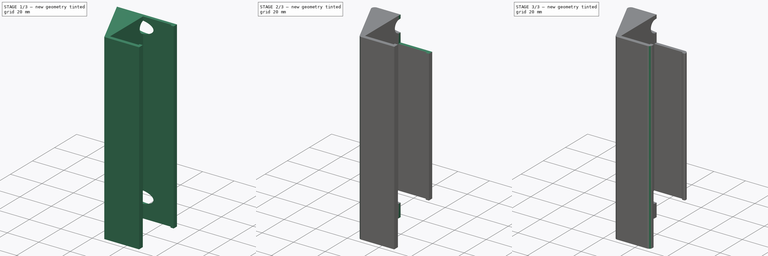
[diagram: build sequence overview — one tinted view per stage of 3, left to right]
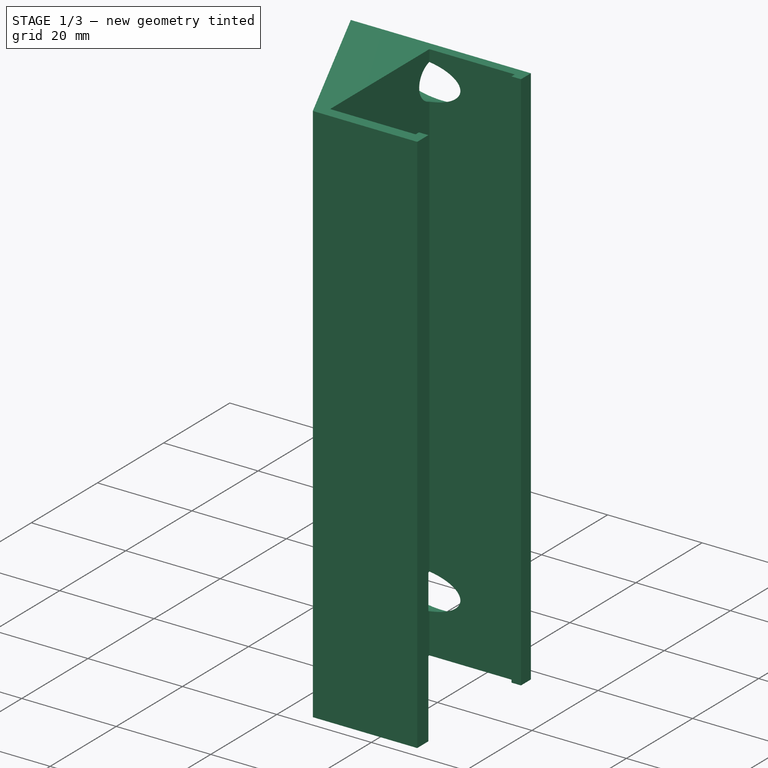
[diagram: stage 1 of 3 — iso view after this stage's code; geometry added in this stage tinted green]
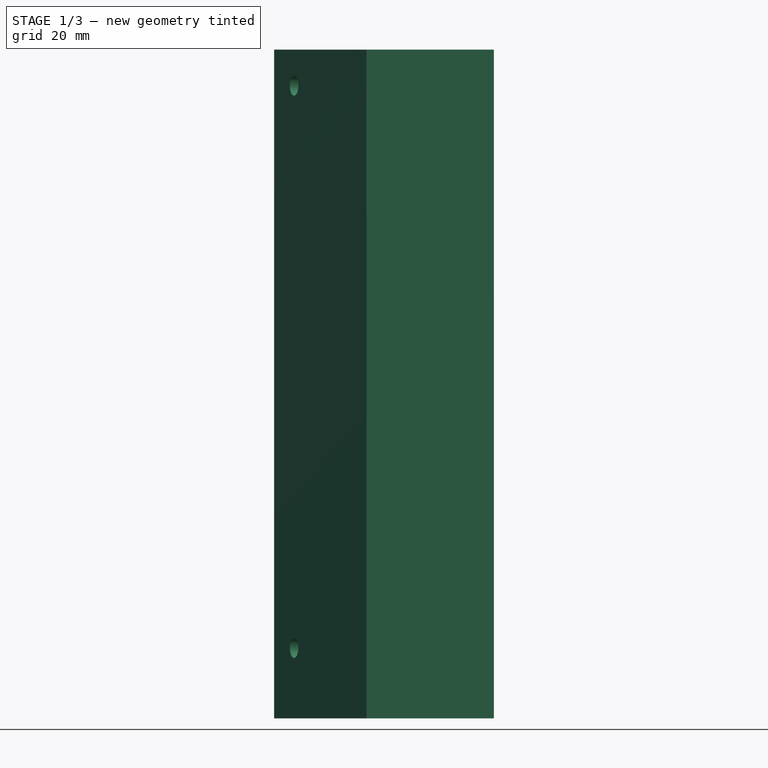
[diagram: stage 1 of 3 — front view after this stage's code; geometry added in this stage tinted green]
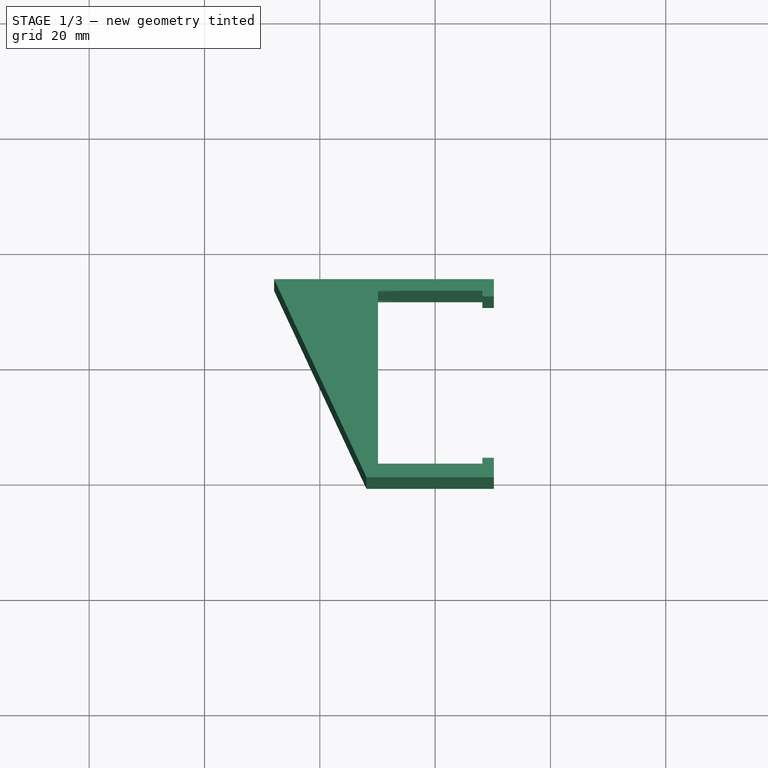
[diagram: stage 1 of 3 — top view after this stage's code; geometry added in this stage tinted green]
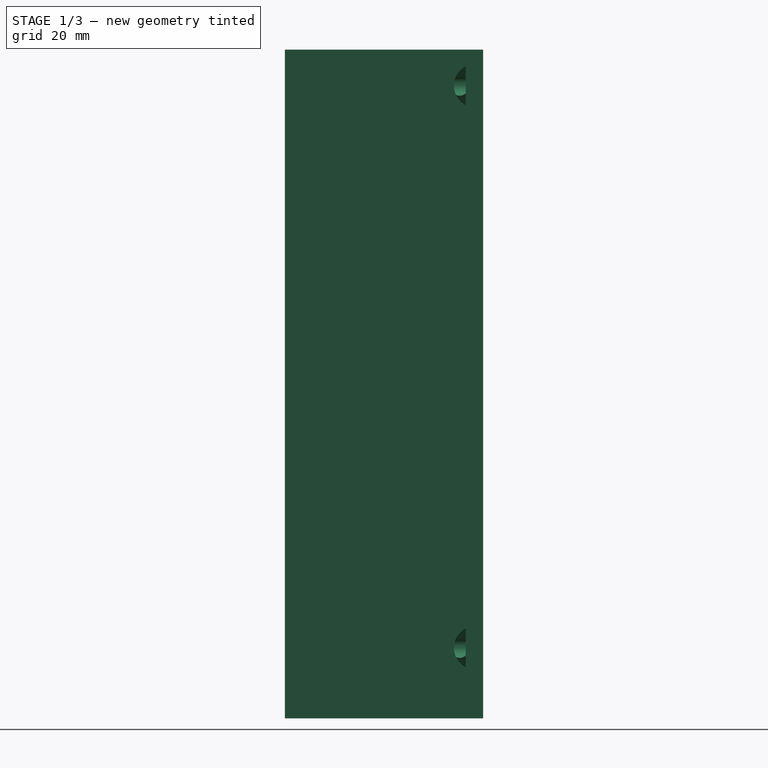
[diagram: stage 1 of 3 — right view after this stage's code; geometry added in this stage tinted green]
FCSTD DOCUMENT  (FreeCAD 1.1R41628 (Git))
Label: mount screen ender 3 v3 se
License: All rights reserved
LicenseURL: https://en.wikipedia.org/wiki/All_rights_reserved
objects: Sketcher::SketchObject×4, PartDesign::Fillet×4, PartDesign::Pocket×3, App::Point×1, PartDesign::Pad×1, PartDesign::Body×1
note: 33 computed .brp shape members not serialized (recipe doc carries the construction recipe); baked Part::Feature solids carry a one-line shape summary decoded from their .brp

FEATURE [App::Point] Origin001
  Role = Origin
FEATURE [Sketcher::SketchObject] Sketch
  ArcFitTolerance = 1e-06
  AttachmentSupport = -> [Origin]
  ExternalTypes = [0]
  FullyConstrained = false
  MakeInternals = false
  MapMode = 5
  sketch-geometry (14):
    g0: LineSegment StartX=10.195 StartY=13.6874 StartZ=0 EndX=-11.905 EndY=13.6874 EndZ=0
    g1: LineSegment StartX=-11.905 StartY=-20.6825 StartZ=0 EndX=10.195 EndY=-20.6825 EndZ=0
    g2: LineSegment StartX=10.195 StartY=-20.6825 StartZ=0 EndX=10.195 EndY=-18.6825 EndZ=0
    g3: LineSegment StartX=-9.90502 StartY=-18.3126 StartZ=0 EndX=-9.90502 EndY=11.6874 EndZ=0
    g4: LineSegment StartX=-9.90502 StartY=11.6874 StartZ=0 EndX=8.19498 EndY=11.6874 EndZ=0
    g5: LineSegment StartX=8.19498 StartY=11.6874 StartZ=0 EndX=8.19498 EndY=10.6874 EndZ=0
    g6: LineSegment StartX=8.19498 StartY=10.6874 StartZ=0 EndX=10.195 EndY=10.6874 EndZ=0
    g7: LineSegment StartX=10.195 StartY=10.6874 StartZ=0 EndX=10.195 EndY=13.6874 EndZ=0
    g8: LineSegment StartX=-9.90502 StartY=-18.3126 StartZ=0 EndX=8.19498 EndY=-18.3126 EndZ=0
    g9: LineSegment StartX=8.19498 StartY=-18.3126 StartZ=0 EndX=8.19498 EndY=-17.3126 EndZ=0
    g10: LineSegment StartX=8.19498 StartY=-17.3126 StartZ=0 EndX=10.195 EndY=-17.3126 EndZ=0
    g11: LineSegment StartX=10.195 StartY=-17.3126 StartZ=0 EndX=10.195 EndY=-18.6825 EndZ=0
    g12: LineSegment StartX=-11.905 StartY=-20.6825 StartZ=0 EndX=-27.932 EndY=13.6874 EndZ=0
    g13: LineSegment StartX=-27.932 StartY=13.6874 StartZ=0 EndX=-11.905 EndY=13.6874 EndZ=0
  constraints (39):
    c: Horizontal(g0)
    c: Horizontal(g1)
    c: Coincident(g1,g2)
    c: Vertical(g2)
    c: Vertical(g3)
    c: Coincident(g3,g4)
    c: Horizontal(g4)
    c: Coincident(g4,g5)
    c: Coincident(g5,g6)
    c: Coincident(g6,g7)
    c: Coincident(g7,g0)
    c: Vertical(g7)
    c: Vertical(g5)
    c: Horizontal(g6)
    c: Vertical(g2,g6)
    c: DistanceX(g6,g6) = 2
    c: DistanceY(g5,g5) = 1
    c: DistanceX(g0,g3) = 2
    c: DistanceY(g3,g0) = 2
    c: DistanceY(g1,g2) = 2
    c: DistanceX(g3,g4) = 18.1
    c: DistanceY(g3,g3) = 30
    c: Coincident(g3,g8)
    c: Horizontal(g8)
    c: Coincident(g8,g9)
    c: Coincident(g9,g10)
    c: Horizontal(g10)
    c: Coincident(g10,g11)
    c: Coincident(g11,g2)
    c: Vertical(g11)
    c: Vertical(g9)
    c: DistanceX(g10,g10) = 2
    c: DistanceY(g9,g9) = 1
    c: Coincident(g12,g1)
    c: Coincident(g13,g12)
    c: Coincident(g13,g0)
    c: Horizontal(g13)
    c: Angle(g12,g13) = 1.13446
    c: DistanceX(g1,g3) = 2
FEATURE [PartDesign::Pad] Pad
  Direction = (0,0,1)
  Length = 116
  Length2 = 10
  Profile = -> Sketch
  ReferenceAxis = -> Sketch [N_Axis]
  Refine = true
  Suppressed = false
  Type = 0
FEATURE [Sketcher::SketchObject] Sketch001
  ArcFitTolerance = 1e-06
  AttachmentSupport = -> [Pad]
  ExternalGeometry = -> [Pad]
  ExternalTypes = [0]
  FullyConstrained = true
  MakeInternals = false
  MapMode = 5
  Placement = pos=(-17.7006,-8.25391,0) rot=(0.742942,-0.473306,-0.473306;1.86366rad)
  sketch-geometry (2):
    g0: Circle CenterX=-16 CenterY=109.75 CenterZ=0 NormalX=0 NormalY=0 NormalZ=1 AngleXU=0 Radius=1.75
    g1: Circle CenterX=-16 CenterY=12.25 CenterZ=0 NormalX=0 NormalY=0 NormalZ=1 AngleXU=0 Radius=1.75
  constraints (6):
    c: Equal(g0,g1)
    c: Vertical(g0,g1)
    c: DistanceX(g0,g-1) = 16
    c: DistanceY(g1,g0) = 97.5
    c: Diameter(g0) = 3.5
    c: DistanceY(g0,g-3) = 6.25
FEATURE [PartDesign::Pocket] Pocket
  BaseFeature = -> Pad
  Direction = (0.906308,0.422618,0)
  Length = 5
  Length2 = 5
  Profile = -> Sketch001
  ReferenceAxis = -> Sketch001 [N_Axis]
  Refine = true
  Suppressed = false
  Type = 2
FEATURE [Sketcher::SketchObject] Sketch002
  ArcFitTolerance = 1e-06
  AttachmentOffset = pos=(0,0,-22) rot=(0,0,1;0rad)
  AttachmentSupport = -> [Pocket]
  ExternalGeometry = -> [Pocket]
  ExternalTypes = [0,0]
  FullyConstrained = true
  MakeInternals = false
  MapMode = 5
  Placement = pos=(2.23821,1.04369,0) rot=(0.742942,-0.473306,-0.473306;1.86366rad)
  sketch-geometry (2):
    g0: Circle CenterX=-16 CenterY=109.75 CenterZ=0 NormalX=0 NormalY=0 NormalZ=1 AngleXU=0 Radius=4
    g1: Circle CenterX=-16 CenterY=12.25 CenterZ=0 NormalX=0 NormalY=0 NormalZ=1 AngleXU=0 Radius=4
  constraints (4):
    c: Coincident(g0,g-3)
    c: Coincident(g1,g-4)
    c: Equal(g0,g1)
    c: Diameter(g0) = 8
FEATURE [PartDesign::Pocket] Pocket001
  BaseFeature = -> Pocket
  Direction = (0.906308,0.422618,0)
  Length = 14
  Length2 = 5
  Profile = -> Sketch002
  ReferenceAxis = -> Sketch002 [N_Axis]
  Refine = true
  Reversed = true
  Suppressed = false
  Type = 0
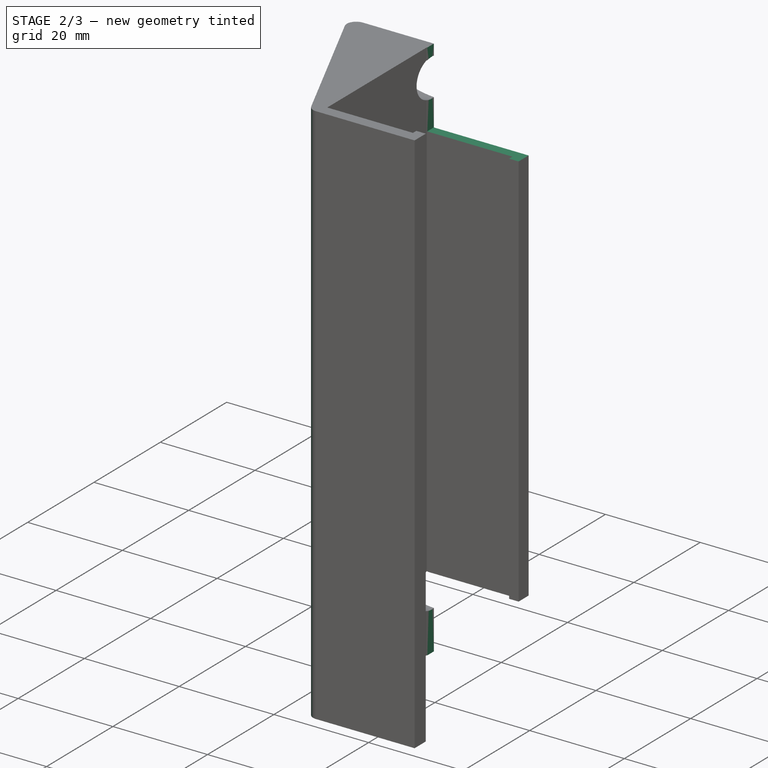
[diagram: stage 2 of 3 — iso view after this stage's code; geometry added in this stage tinted green]
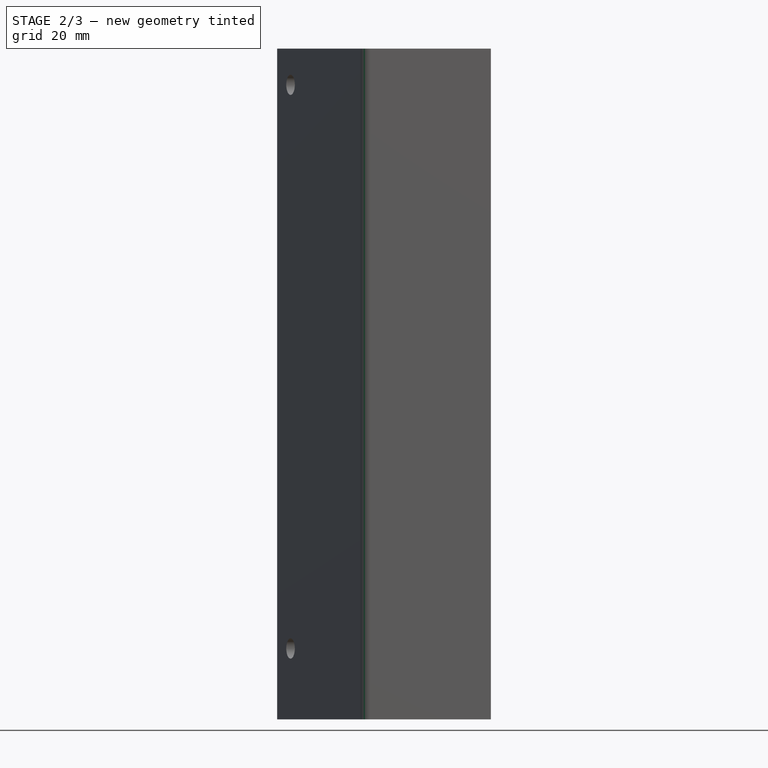
[diagram: stage 2 of 3 — front view after this stage's code; geometry added in this stage tinted green]
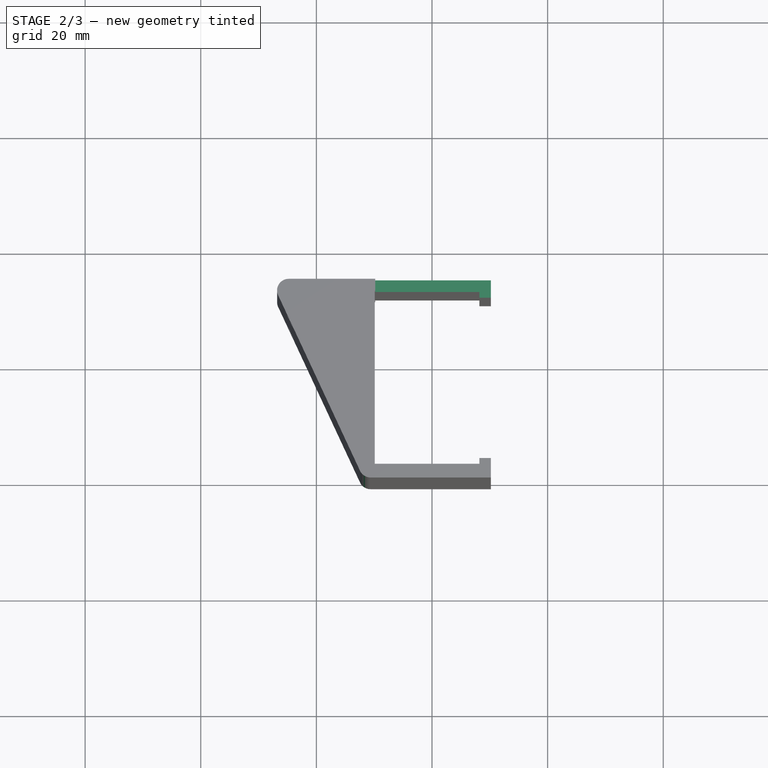
[diagram: stage 2 of 3 — top view after this stage's code; geometry added in this stage tinted green]
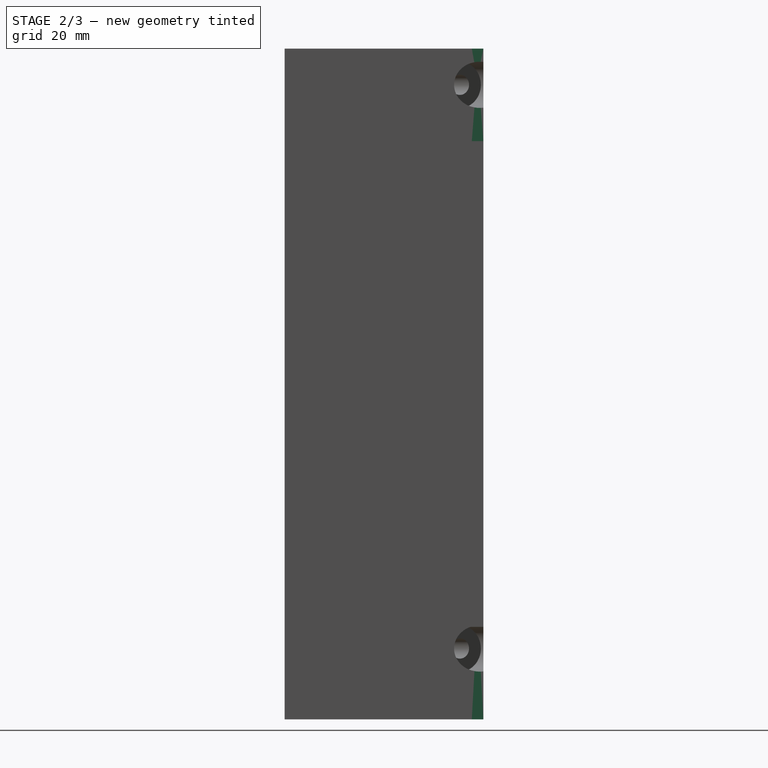
[diagram: stage 2 of 3 — right view after this stage's code; geometry added in this stage tinted green]
FEATURE [Sketcher::SketchObject] Sketch003
  ArcFitTolerance = 1e-06
  AttachmentSupport = -> [Pocket001]
  ExternalGeometry = -> [Pocket001]
  ExternalTypes = [0]
  FullyConstrained = true
  MakeInternals = false
  MapMode = 5
  Placement = pos=(0,13.6874,0) rot=(0,0.707107,0.707107;3.14159rad)
  sketch-geometry (8):
    g0: LineSegment StartX=-10.195 StartY=0 StartZ=0 EndX=9.80502 EndY=0 EndZ=0
    g1: LineSegment StartX=9.80502 StartY=0 StartZ=0 EndX=9.80502 EndY=16 EndZ=0
    g2: LineSegment StartX=9.80502 StartY=16 StartZ=0 EndX=-10.195 EndY=16 EndZ=0
    g3: LineSegment StartX=-10.195 StartY=16 StartZ=0 EndX=-10.195 EndY=0 EndZ=0
    g4: LineSegment StartX=-10.195 StartY=116 StartZ=0 EndX=-10.195 EndY=100 EndZ=0
    g5: LineSegment StartX=-10.195 StartY=100 StartZ=0 EndX=9.80502 EndY=100 EndZ=0
    g6: LineSegment StartX=9.80502 StartY=100 StartZ=0 EndX=9.80502 EndY=116 EndZ=0
    g7: LineSegment StartX=9.80502 StartY=116 StartZ=0 EndX=-10.195 EndY=116 EndZ=0
  constraints (22):
    c: Coincident(g0,g1)
    c: Coincident(g1,g2)
    c: Coincident(g2,g3)
    c: Coincident(g3,g0)
    c: Horizontal(g0)
    c: Horizontal(g2)
    c: Vertical(g1)
    c: Vertical(g3)
    c: Coincident(g0,g-3)
    c: DistanceY(g3,g3) = 16
    c: Coincident(g4,g5)
    c: Coincident(g5,g6)
    c: Coincident(g6,g7)
    c: Coincident(g7,g4)
    c: Vertical(g4)
    c: Vertical(g6)
    c: Horizontal(g5)
    c: Horizontal(g7)
    c: Coincident(g4,g-3)
    c: DistanceY(g4,g4) = 16
    c: Distance(g2,g2) = 20
    c: DistanceX(g7,g7) = 20
FEATURE [PartDesign::Pocket] Pocket002
  BaseFeature = -> Pocket001
  Direction = (0,-1,2e-16)
  Length = 5
  Length2 = 5
  Profile = -> Sketch003
  ReferenceAxis = -> Sketch003 [N_Axis]
  Refine = true
  Suppressed = false
  Type = 0
FEATURE [PartDesign::Fillet] Fillet
  Base = -> Pocket002 [Edge54,Edge53]
  BaseFeature = -> Pocket002
  Radius = 2
  Refine = true
  SupportTransform = false
  Suppressed = false
  UseAllEdges = false
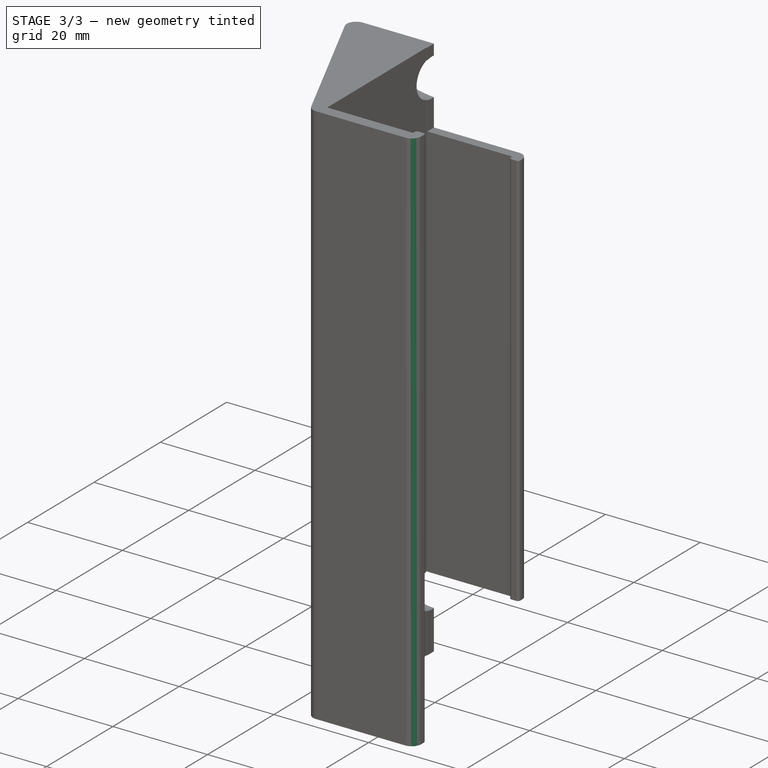
[diagram: stage 3 of 3 — iso view after this stage's code; geometry added in this stage tinted green]
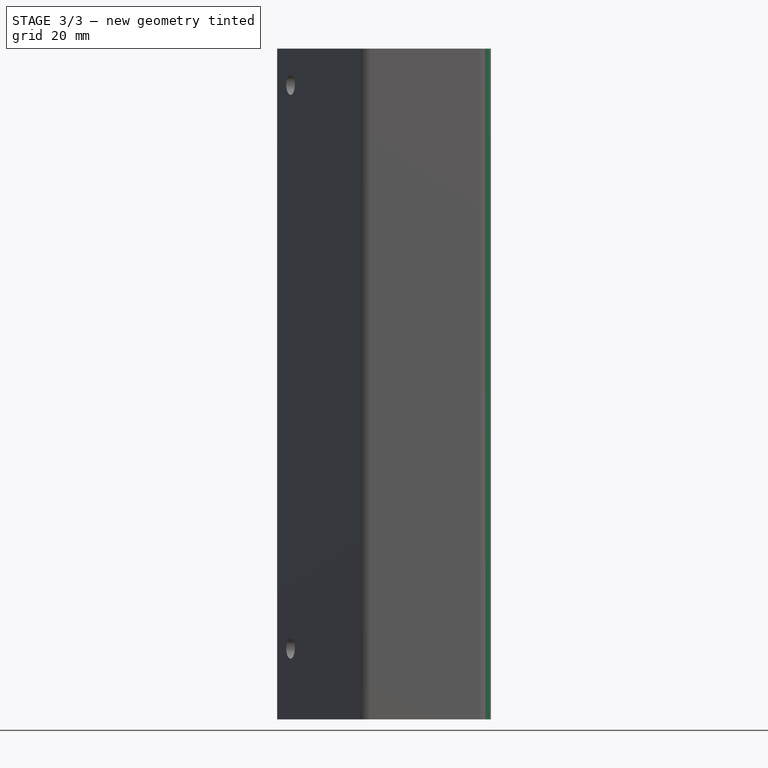
[diagram: stage 3 of 3 — front view after this stage's code; geometry added in this stage tinted green]
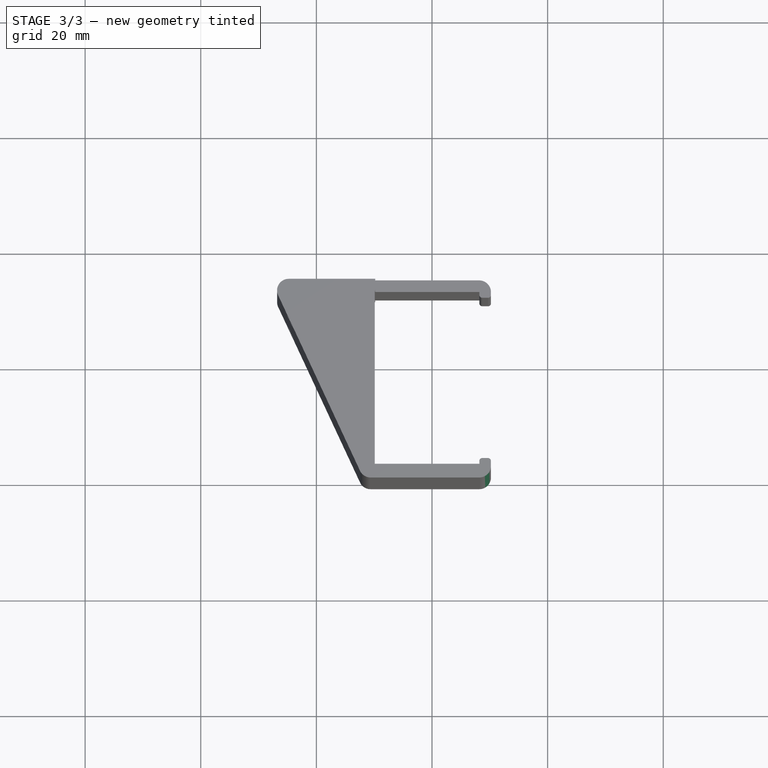
[diagram: stage 3 of 3 — top view after this stage's code; geometry added in this stage tinted green]
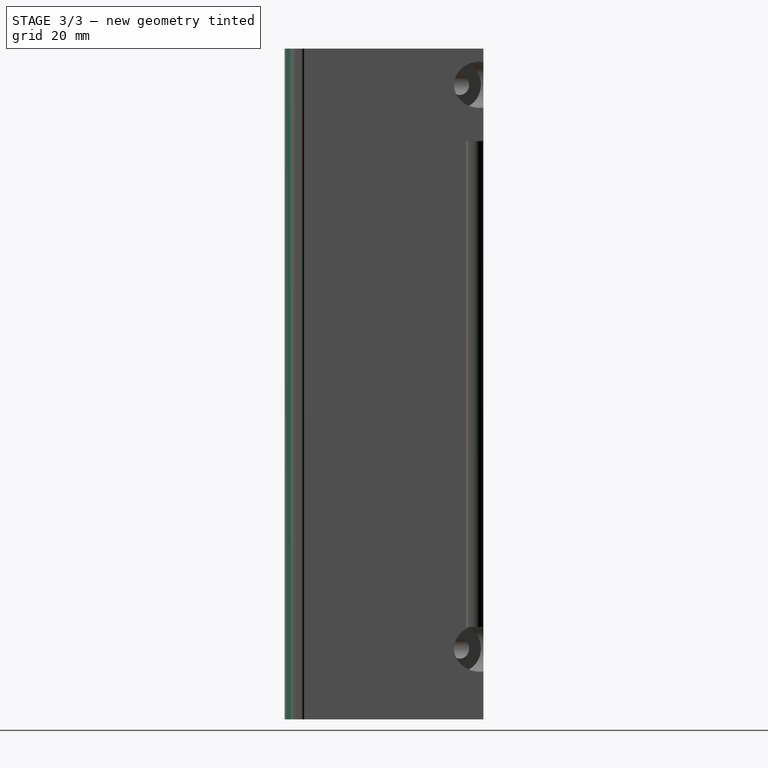
[diagram: stage 3 of 3 — right view after this stage's code; geometry added in this stage tinted green]
FEATURE [PartDesign::Fillet] Fillet001
  Base = -> Fillet [Edge14,Edge38]
  BaseFeature = -> Fillet
  Radius = 2
  Refine = true
  SupportTransform = false
  Suppressed = false
  UseAllEdges = false
FEATURE [PartDesign::Fillet] Fillet002
  Base = -> Fillet001 [Edge87,Edge27]
  BaseFeature = -> Fillet001
  Radius = 0.5
  Refine = true
  SupportTransform = false
  Suppressed = false
  UseAllEdges = false
FEATURE [PartDesign::Fillet] Fillet003
  Base = -> Fillet002 [Edge93,Edge16]
  BaseFeature = -> Fillet002
  Radius = 0.5
  Refine = true
  SupportTransform = false
  Suppressed = false
  UseAllEdges = false
FEATURE [PartDesign::Body] Body
  AllowCompound = false
  Group = -> [Sketch,Pad,Sketch001,Pocket,Sketch002,Pocket001,Sketch003,Pocket002,Fillet,Fillet001,Fillet002,Fillet003]
  Origin = -> Origin
  Tip = -> Fillet003
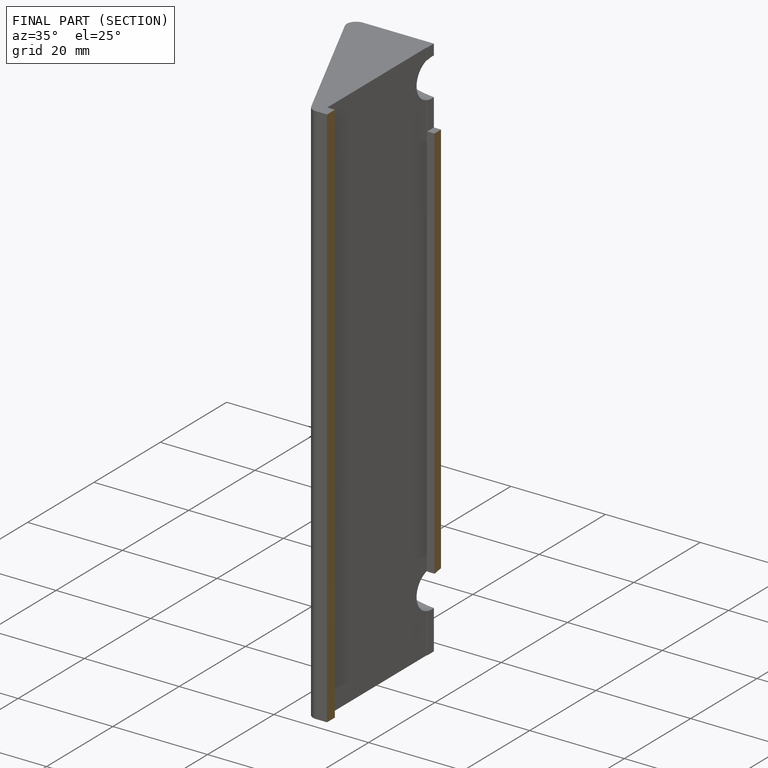
[diagram: finished part — half-section view (interior)]
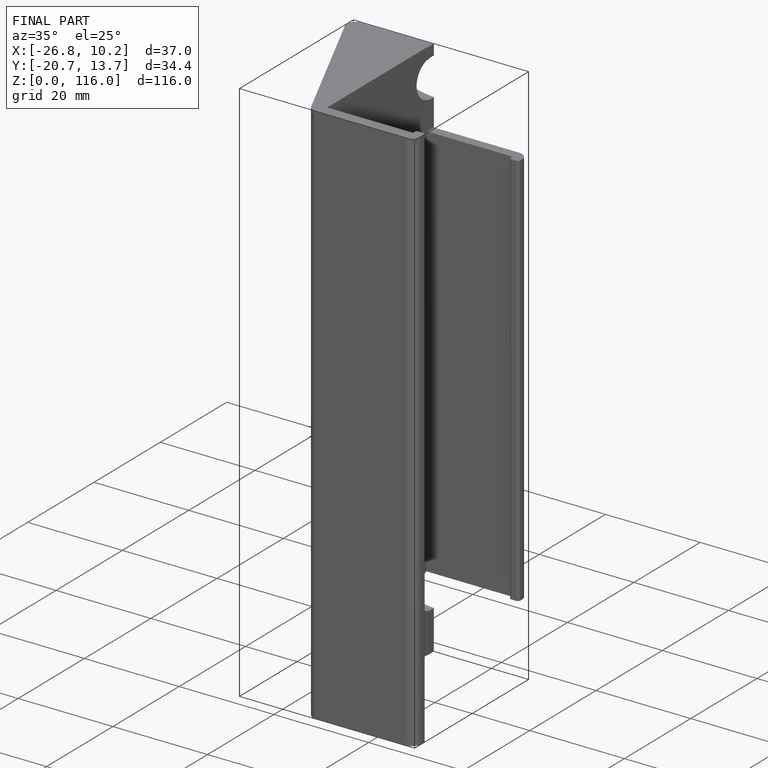
[diagram: finished part — iso view with bounding-box wireframe]
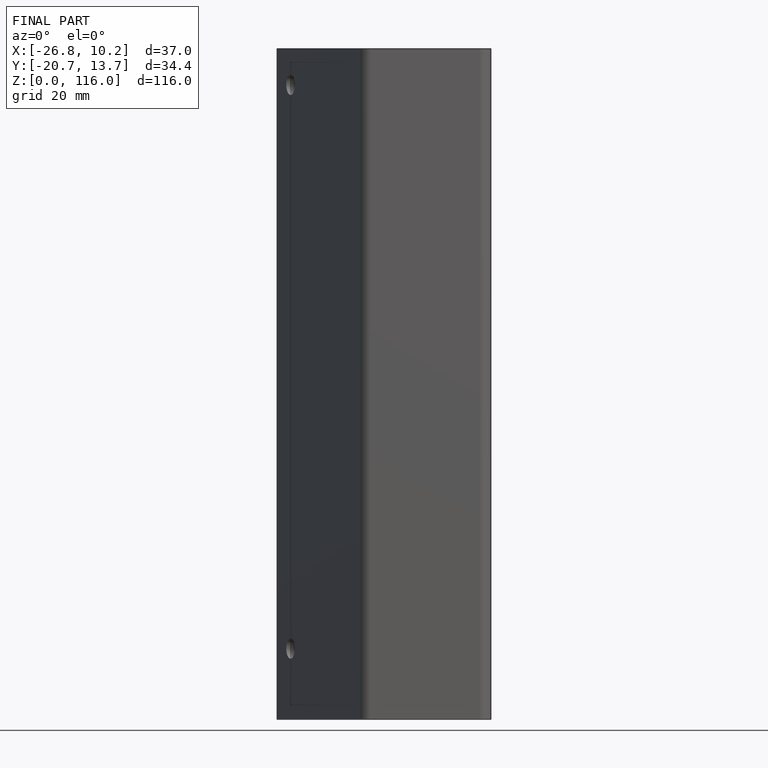
[diagram: finished part — front view with bounding-box wireframe]
